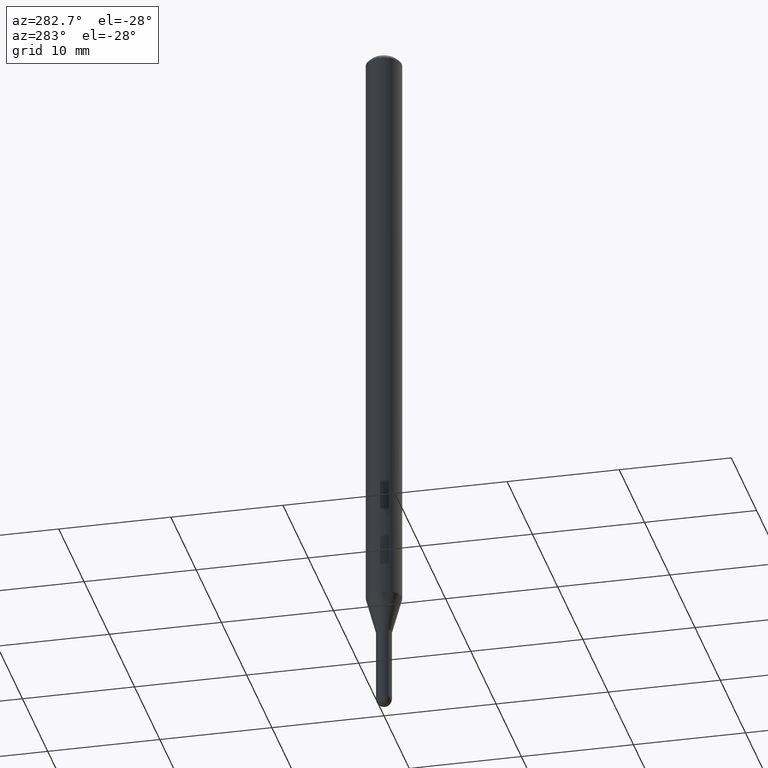
[diagram: clean part render]
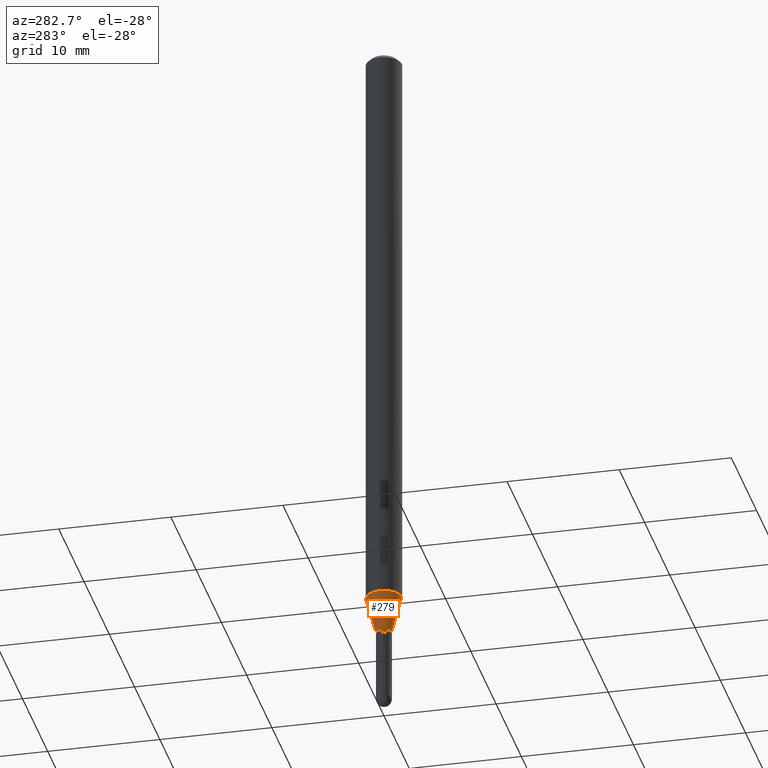
[diagram: same view with one face highlighted and labeled with its STEP entity id]
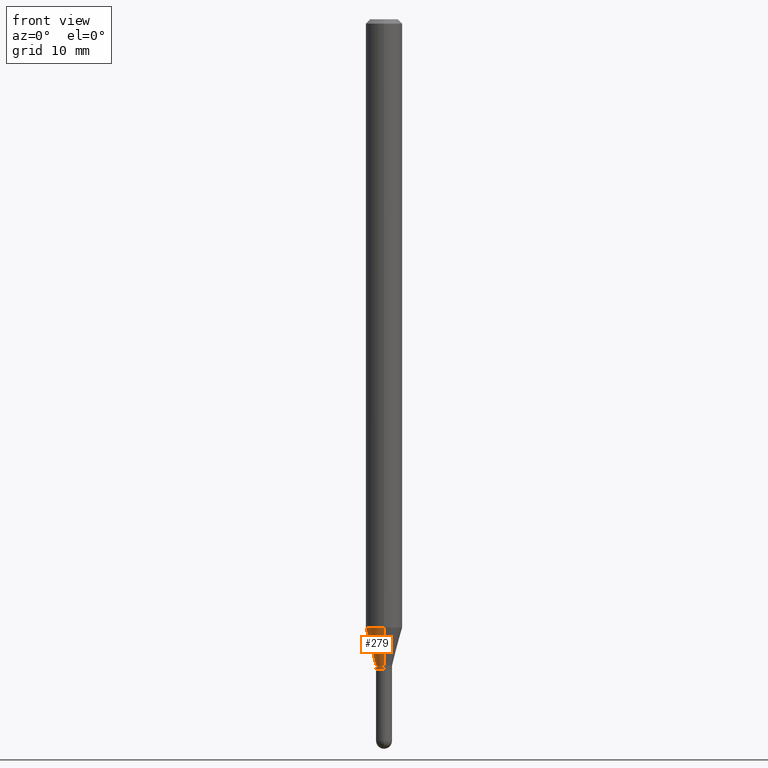
[diagram: same view with one face highlighted and labeled with its STEP entity id]
A machine part, auxiliary view. The second image highlights one B-rep face of the part: STEP entity #279.
A second angle (front view) of the same face is appended — the face is thin or edge-on in the first view.
In plain terms, the highlighted conical surface has half-angle 15 deg.
Its self-contained STEP definition (entity closure, byte-faithful):
#1 = CARTESIAN_POINT ( 'NONE',  ( 5.416780979827812777E-29, -7.733534395540570938E-15, -2.215000000000000302 ) ) ;
#19 = VERTEX_POINT ( 'NONE', #500 ) ;
#24 = VERTEX_POINT ( 'NONE', #426 ) ;
#49 = CARTESIAN_POINT ( 'NONE',  ( -1.920314736363195647E-16, -0.02750000000000793476, -2.215000000000000302 ) ) ;
#53 = CARTESIAN_POINT ( 'NONE',  ( 5.416780979827812777E-29, -7.733534395540570938E-15, -2.215000000000000302 ) ) ;
#55 = FACE_OUTER_BOUND ( 'NONE', #375, .T. ) ;
#69 = ORIENTED_EDGE ( 'NONE', *, *, #451, .F. ) ;
#73 = VERTEX_POINT ( 'NONE', #75 ) ;
#75 = CARTESIAN_POINT ( 'NONE',  ( 3.197442310920983692E-16, 0.02749999999999246797, -2.215000000000000302 ) ) ;
#110 = VECTOR ( 'NONE', #121, 39.37007874015748854 ) ;
#116 = ORIENTED_EDGE ( 'NONE', *, *, #506, .T. ) ;
#121 = DIRECTION ( 'NONE',  ( -1.807323732225331717E-15, -0.2588190451025184080, 0.9659258262890689783 ) ) ;
#130 = DIRECTION ( 'NONE',  ( -2.445499313692014711E-29, 3.491437650356916389E-15, 1.000000000000000000 ) ) ;
#170 = CIRCLE ( 'NONE', #403, 0.02750000000000020137 ) ;
#175 = CONICAL_SURFACE ( 'NONE', #453, 0.02750000000000020137, 0.2617993877991505181 ) ;
#192 = CARTESIAN_POINT ( 'NONE',  ( -1.920314736363195647E-16, -0.02750000000000793476, -2.215000000000000302 ) ) ;
#200 = DIRECTION ( 'NONE',  ( 1.839019923739601893E-15, 0.2588190451025252359, 0.9659258262890670910 ) ) ;
#206 = EDGE_CURVE ( 'NONE', #73, #19, #361, .T. ) ;
#231 = CARTESIAN_POINT ( 'NONE',  ( 5.097345510727747857E-29, -7.277476600949894136E-15, -2.084378221735090797 ) ) ;
#235 = EDGE_CURVE ( 'NONE', #248, #24, #368, .T. ) ;
#248 = VERTEX_POINT ( 'NONE', #192 ) ;
#273 = DIRECTION ( 'NONE',  ( -2.445499313692014711E-29, 3.491437650356916389E-15, 1.000000000000000000 ) ) ;
#275 = CARTESIAN_POINT ( 'NONE',  ( 1.953992523340831175E-16, 0.02749999999999246797, -2.215000000000000302 ) ) ;
#279 = ADVANCED_FACE ( 'NONE', ( #55 ), #175, .T. ) ;
#324 = DIRECTION ( 'NONE',  ( -2.445499313692014711E-29, 3.491437650356916389E-15, 1.000000000000000000 ) ) ;
#333 = ORIENTED_EDGE ( 'NONE', *, *, #235, .T. ) ;
#361 = LINE ( 'NONE', #275, #363 ) ;
#362 = DIRECTION ( 'NONE',  ( -6.982962677686265922E-15, -1.000000000000000000, 4.370956789862821150E-15 ) ) ;
#363 = VECTOR ( 'NONE', #200, 39.37007874015748854 ) ;
#364 = AXIS2_PLACEMENT_3D ( 'NONE', #231, #324, #362 ) ;
#368 = LINE ( 'NONE', #49, #110 ) ;
#375 = EDGE_LOOP ( 'NONE', ( #494, #116, #333, #69 ) ) ;
#403 = AXIS2_PLACEMENT_3D ( 'NONE', #53, #130, #444 ) ;
#426 = CARTESIAN_POINT ( 'NONE',  ( -4.364351673553408372E-16, -0.06250000000000729972, -2.084378221735090797 ) ) ;
#444 = DIRECTION ( 'NONE',  ( -6.982962677686265922E-15, -1.000000000000000000, 0.000000000000000000 ) ) ;
#447 = CIRCLE ( 'NONE', #364, 0.06250000000000000000 ) ;
#451 = EDGE_CURVE ( 'NONE', #19, #24, #447, .T. ) ;
#453 = AXIS2_PLACEMENT_3D ( 'NONE', #1, #273, #480 ) ;
#480 = DIRECTION ( 'NONE',  ( -6.982962677686265922E-15, -1.000000000000000000, 0.000000000000000000 ) ) ;
#494 = ORIENTED_EDGE ( 'NONE', *, *, #206, .F. ) ;
#500 = CARTESIAN_POINT ( 'NONE',  ( 4.440892098501132019E-16, 0.06249999999999269334, -2.084378221735091241 ) ) ;
#506 = EDGE_CURVE ( 'NONE', #73, #248, #170, .T. ) ;